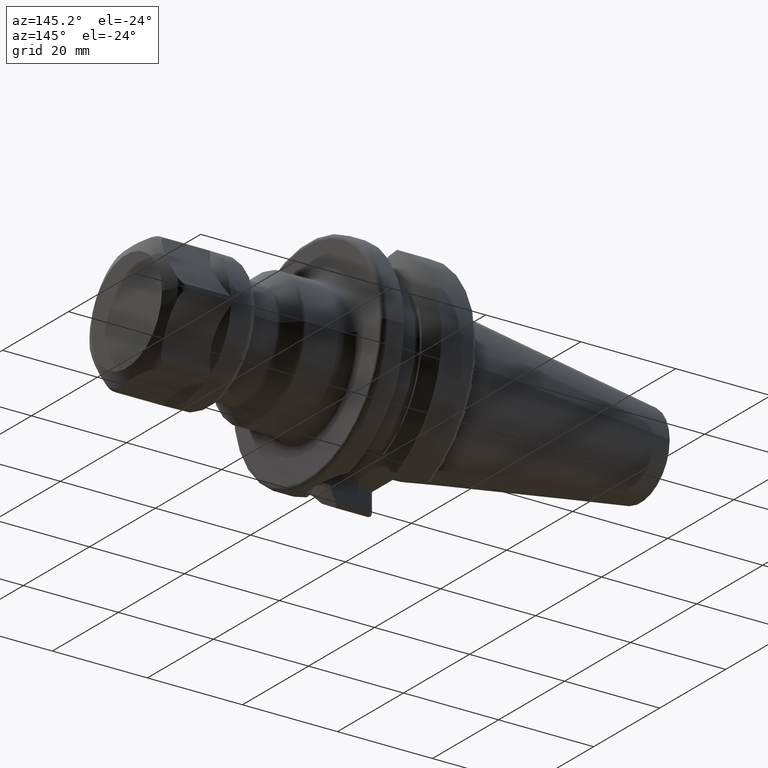
[diagram: clean part render]
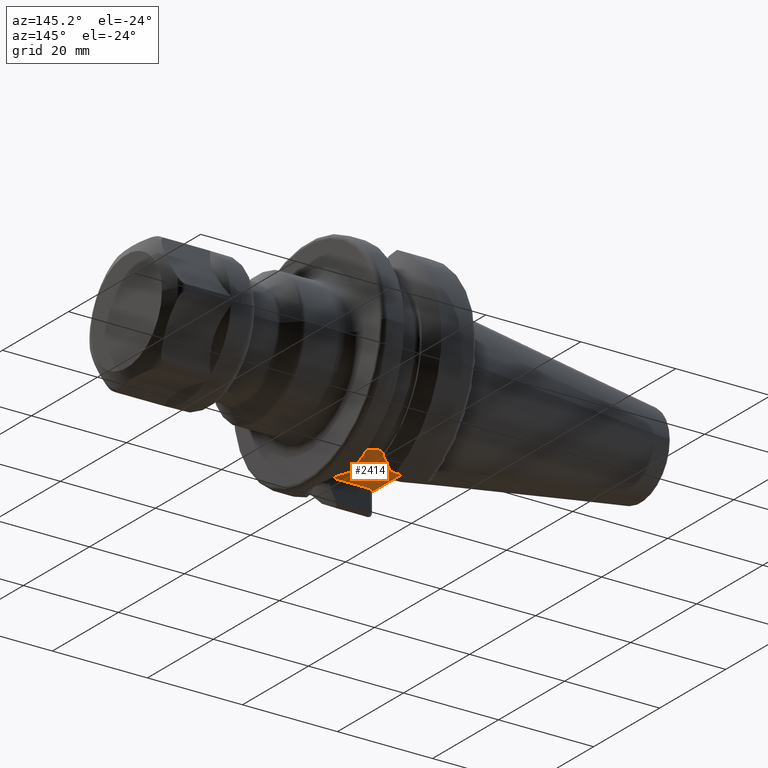
[diagram: same view with one face highlighted and labeled with its STEP entity id]
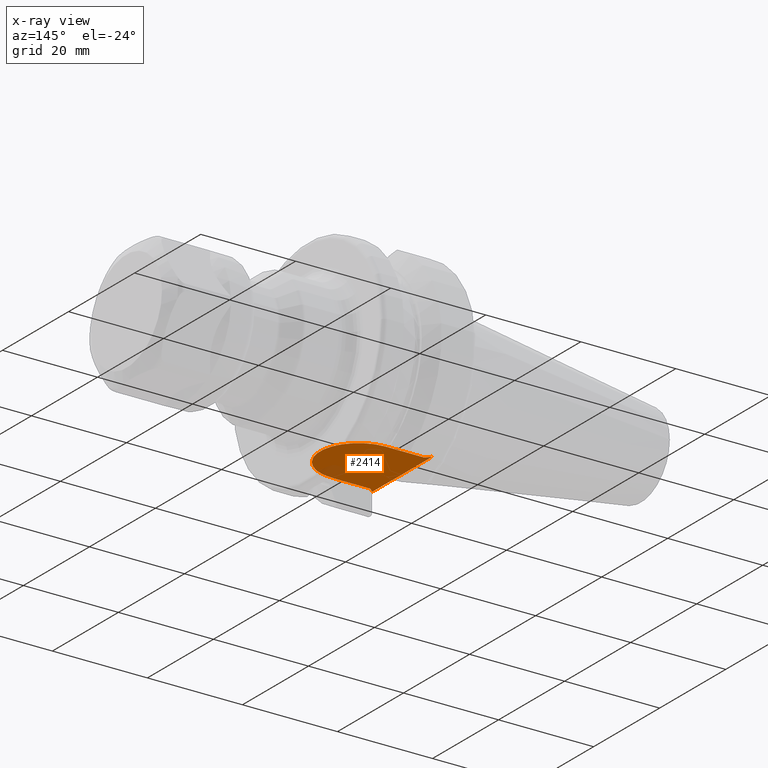
[diagram: x-ray of the same camera — body ghosted, the highlighted face saturated]
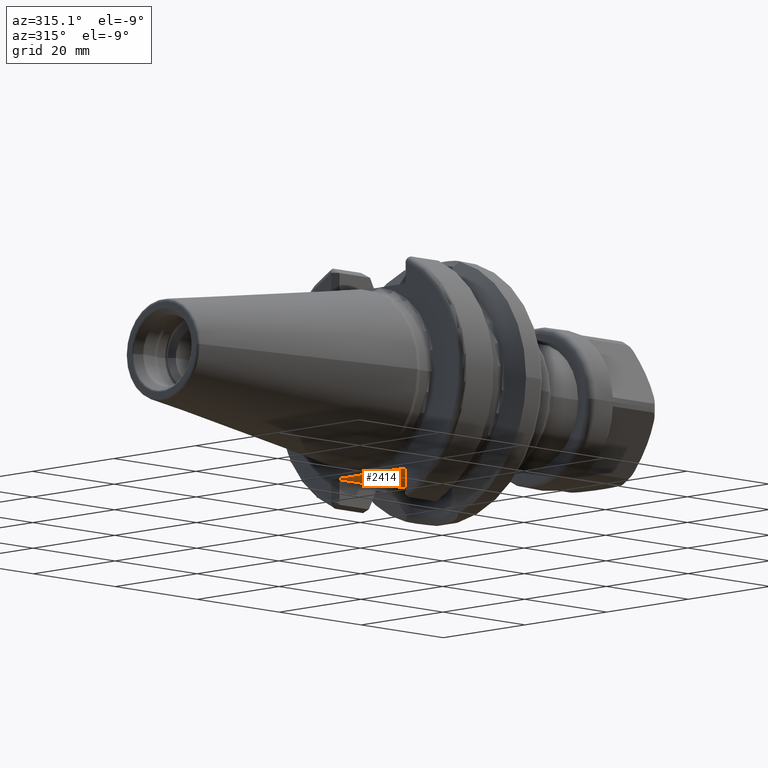
[diagram: same view with one face highlighted and labeled with its STEP entity id]
A machine part, auxiliary view. The second image highlights one B-rep face of the part: STEP entity #2414.
The next image is the same camera in x-ray: the body ghosted, the highlighted face saturated — about 7% of this face is hidden behind the body in this view.
A second angle (auxiliary view) of the same face is appended — the face is thin or edge-on in the first view.
In plain terms, the highlighted planar face has unit normal (0, 0, 1).
Its self-contained STEP definition (entity closure, byte-faithful):
#116=CARTESIAN_POINT('',(2.E0,2.705203319531E0,-1.615E1));
#117=CARTESIAN_POINT('',(2.E0,2.447526606662E0,-1.615E1));
#118=CARTESIAN_POINT('',(1.994666808081E0,1.932209003313E0,-1.615E1));
#119=CARTESIAN_POINT('',(1.982373677754E0,1.159353659255E0,-1.615E1));
#120=CARTESIAN_POINT('',(1.974023153497E0,3.864772815515E-1,-1.615E1));
#121=CARTESIAN_POINT('',(1.974022947075E0,-3.864455621442E-1,-1.615E1));
#122=CARTESIAN_POINT('',(1.982373315248E0,-1.159330607093E0,-1.615E1));
#123=CARTESIAN_POINT('',(1.994666672291E0,-1.932198796155E0,-1.615E1));
#124=CARTESIAN_POINT('',(2.E0,-2.447523240675E0,-1.615E1));
#125=CARTESIAN_POINT('',(2.E0,-2.705203319531E0,-1.615E1));
#147=DIRECTION('',(7.071067811865E-1,-7.071067811865E-1,0.E0));
#148=VECTOR('',#147,1.414213562373E0);
#149=CARTESIAN_POINT('',(2.E0,9.095E0,-1.615E1));
#150=LINE('',#149,#148);
#724=DIRECTION('',(-7.071067811865E-1,-7.071067811865E-1,0.E0));
#725=VECTOR('',#724,1.414213562373E0);
#726=CARTESIAN_POINT('',(3.E0,-8.095E0,-1.615E1));
#727=LINE('',#726,#725);
#728=DIRECTION('',(-1.E0,0.E0,0.E0));
#729=VECTOR('',#728,8.155E0);
#730=CARTESIAN_POINT('',(1.1155E1,8.095E0,-1.615E1));
#731=LINE('',#730,#729);
#732=DIRECTION('',(0.E0,-1.E0,0.E0));
#733=VECTOR('',#732,6.389796680469E0);
#734=CARTESIAN_POINT('',(2.E0,9.095E0,-1.615E1));
#735=LINE('',#734,#733);
#736=DIRECTION('',(0.E0,-1.E0,0.E0));
#737=VECTOR('',#736,6.389796680469E0);
#738=CARTESIAN_POINT('',(2.E0,-2.705203319531E0,-1.615E1));
#739=LINE('',#738,#737);
#740=DIRECTION('',(1.E0,0.E0,0.E0));
#741=VECTOR('',#740,8.155E0);
#742=CARTESIAN_POINT('',(3.E0,-8.095E0,-1.615E1));
#743=LINE('',#742,#741);
#744=CARTESIAN_POINT('',(1.1155E1,0.E0,-1.615E1));
#745=DIRECTION('',(0.E0,0.E0,1.E0));
#746=DIRECTION('',(0.E0,-1.E0,0.E0));
#747=AXIS2_PLACEMENT_3D('',#744,#745,#746);
#1358=CARTESIAN_POINT('',(1.1155E1,-8.095E0,-1.615E1));
#1359=CARTESIAN_POINT('',(1.1155E1,8.095E0,-1.615E1));
#1360=VERTEX_POINT('',#1358);
#1361=VERTEX_POINT('',#1359);
#1362=CARTESIAN_POINT('',(2.E0,2.705203319531E0,-1.615E1));
#1363=VERTEX_POINT('',#1362);
#1364=CARTESIAN_POINT('',(2.E0,-2.705203319531E0,-1.615E1));
#1365=VERTEX_POINT('',#1364);
#1407=CARTESIAN_POINT('',(3.E0,8.095E0,-1.615E1));
#1409=VERTEX_POINT('',#1407);
#1411=CARTESIAN_POINT('',(2.E0,9.095E0,-1.615E1));
#1413=VERTEX_POINT('',#1411);
#1417=CARTESIAN_POINT('',(2.E0,-9.095E0,-1.615E1));
#1418=VERTEX_POINT('',#1417);
#1419=CARTESIAN_POINT('',(3.E0,-8.095E0,-1.615E1));
#1421=VERTEX_POINT('',#1419);
#2399=CARTESIAN_POINT('',(0.E0,0.E0,-1.615E1));
#2400=DIRECTION('',(0.E0,0.E0,1.E0));
#2401=DIRECTION('',(1.E0,0.E0,0.E0));
#2402=AXIS2_PLACEMENT_3D('',#2399,#2400,#2401);
#2403=PLANE('',#2402);
#2404=ORIENTED_EDGE('',*,*,#1689,.T.);
#2405=ORIENTED_EDGE('',*,*,#1672,.F.);
#2406=ORIENTED_EDGE('',*,*,#1636,.T.);
#2407=ORIENTED_EDGE('',*,*,#1615,.T.);
#2408=ORIENTED_EDGE('',*,*,#1648,.T.);
#2409=ORIENTED_EDGE('',*,*,#2394,.F.);
#2410=ORIENTED_EDGE('',*,*,#1815,.T.);
#2411=ORIENTED_EDGE('',*,*,#1850,.T.);
#2412=EDGE_LOOP('',(#2404,#2405,#2406,#2407,#2408,#2409,#2410,#2411));
#2413=FACE_OUTER_BOUND('',#2412,.F.);
#2414=ADVANCED_FACE('',(#2413),#2403,.F.);
#126=B_SPLINE_CURVE_WITH_KNOTS('',3,(#116,#117,#118,#119,#120,#121,#122,#123,
#124,#125),.UNSPECIFIED.,.F.,.F.,(4,1,1,1,1,1,1,4),(0.E0,1.428571428571E-1,
2.857142857143E-1,4.285714285714E-1,5.714285714286E-1,7.142857142857E-1,
8.571428571429E-1,1.E0),.UNSPECIFIED.);
#748=CIRCLE('',#747,8.095E0);
#1615=EDGE_CURVE('',#1363,#1365,#126,.T.);
#1636=EDGE_CURVE('',#1413,#1363,#735,.T.);
#1648=EDGE_CURVE('',#1365,#1418,#739,.T.);
#1672=EDGE_CURVE('',#1413,#1409,#150,.T.);
#1689=EDGE_CURVE('',#1361,#1409,#731,.T.);
#1815=EDGE_CURVE('',#1421,#1360,#743,.T.);
#1850=EDGE_CURVE('',#1360,#1361,#748,.T.);
#2394=EDGE_CURVE('',#1421,#1418,#727,.T.);